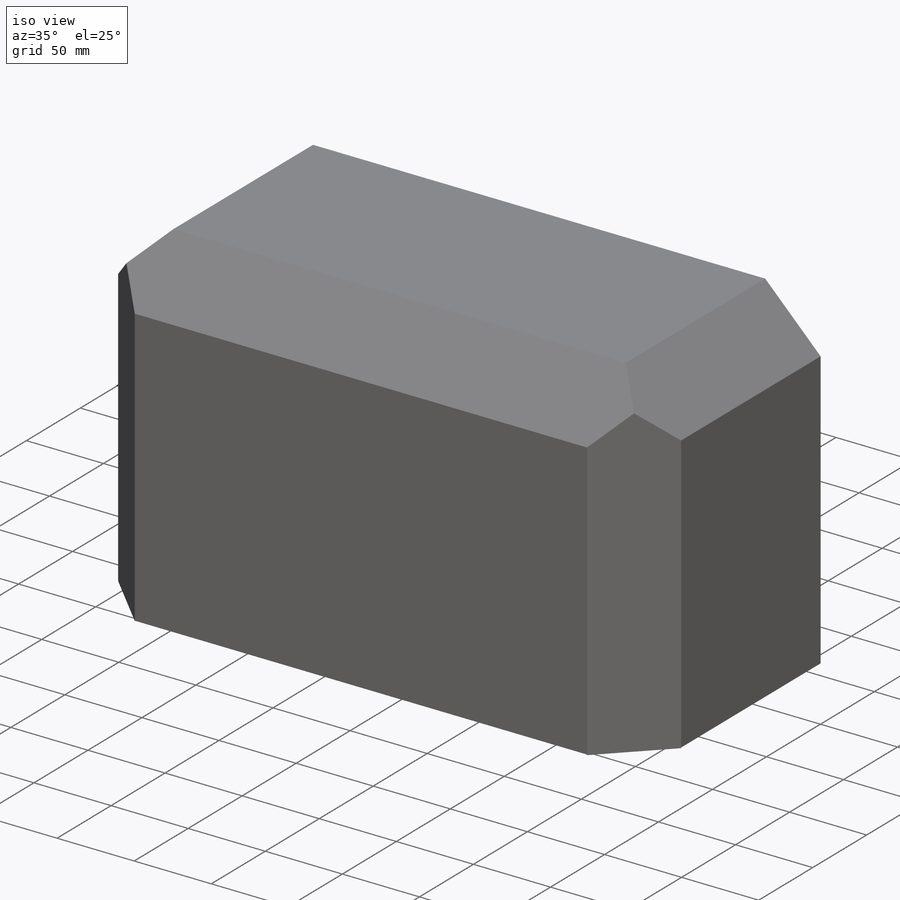
[diagram: iso view]
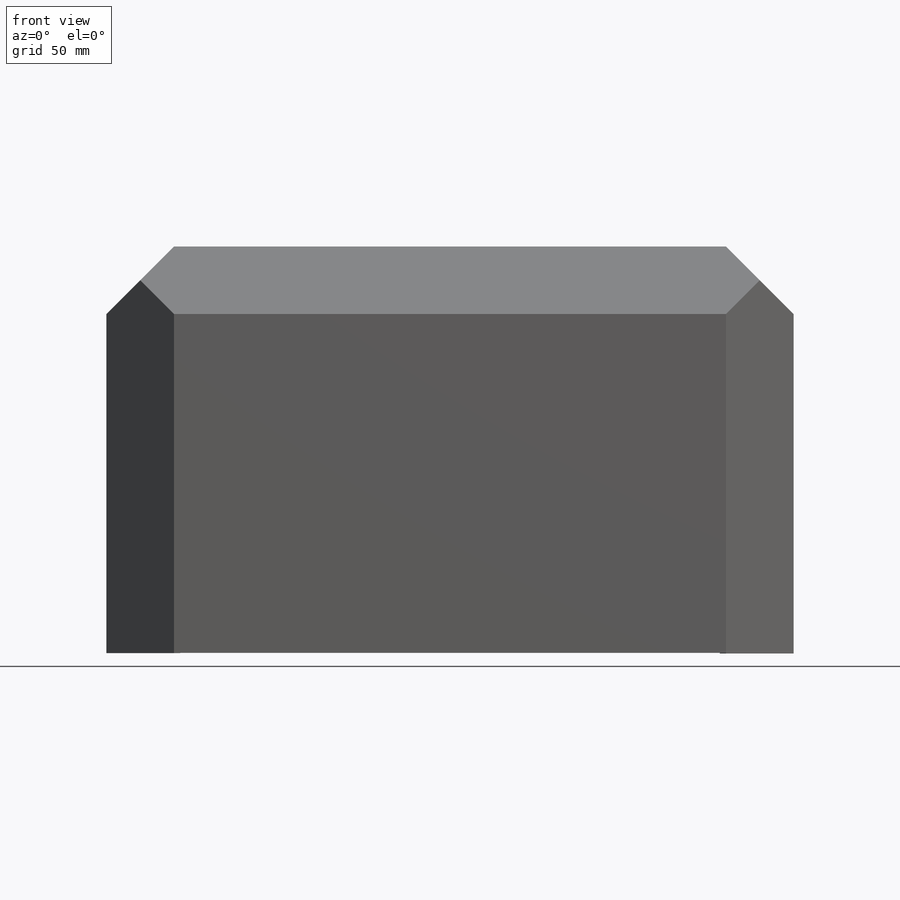
[diagram: front view]
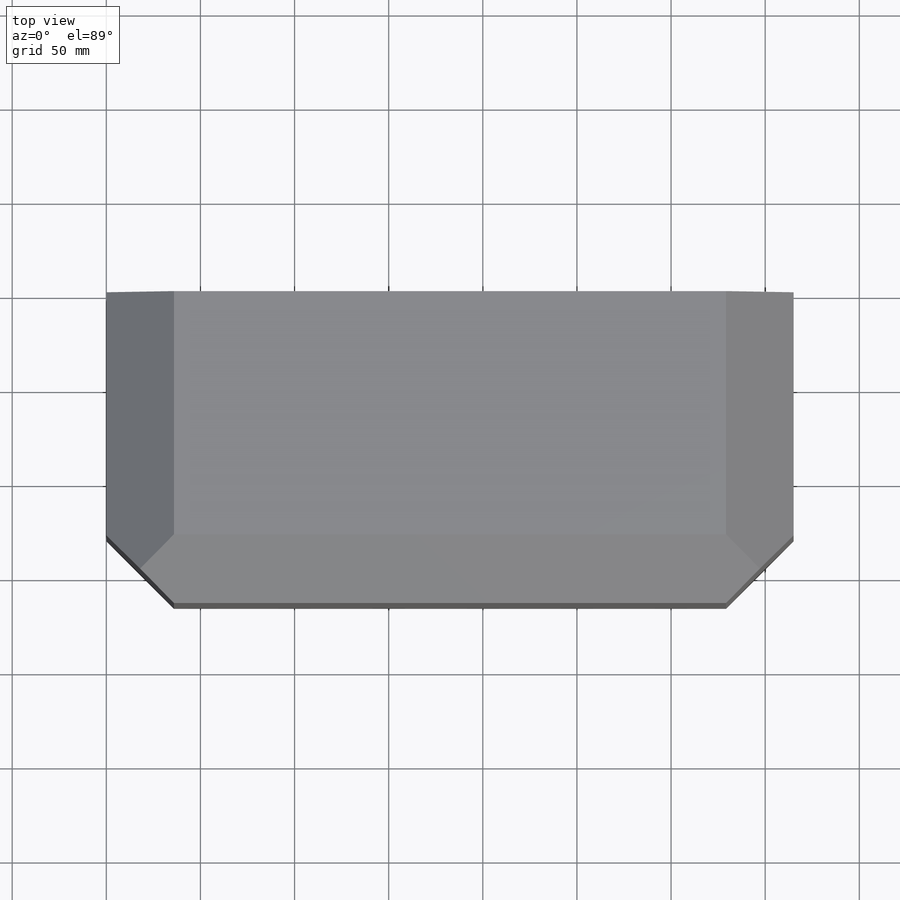
[diagram: top view]
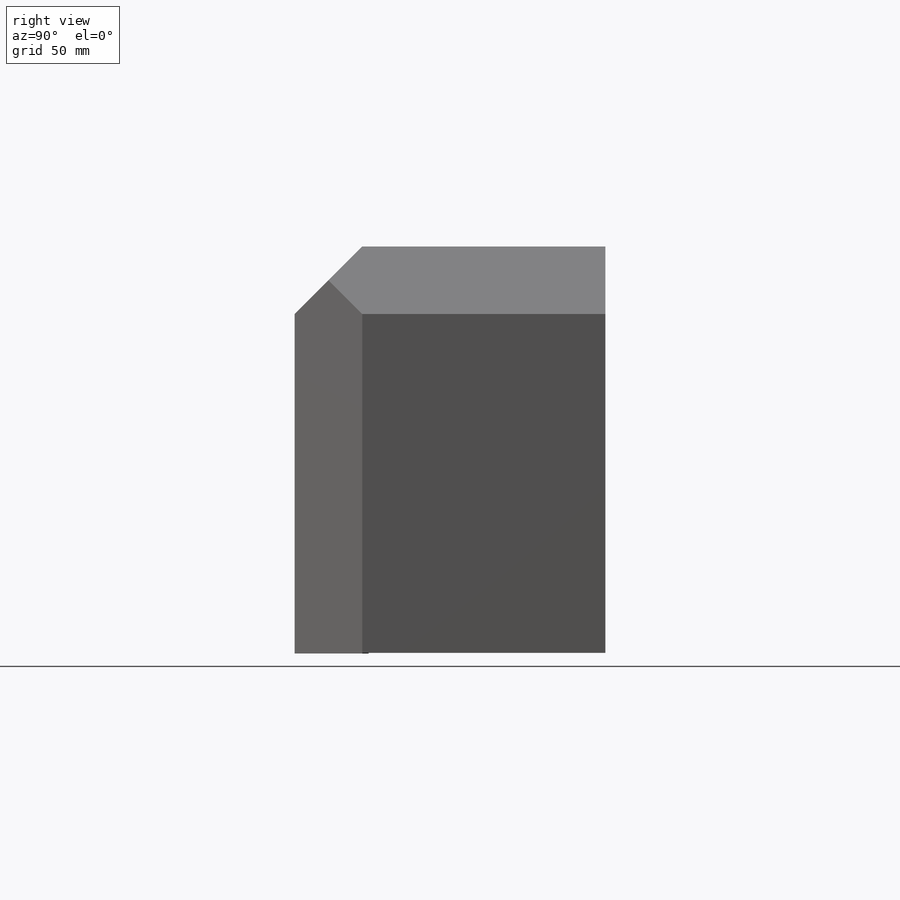
[diagram: right view]
SOLIDWORKS PART (.sldprt)
format: sldprt  version: not decoded by parser v0  size: 358,400 bytes
history: native  units: mm
features: sketch x14, cut_extrude x9, extrude x5, material x1 (+12 scaffold rows collapsed)
feature tree (41):
  scaffold x12  (default folders/planes/origin — collapsed)
  material  "Material <not specified>"
  sketch  "Sketch13"  dims[c1.D1=50.8mm c1.D2=50.8mm c1.11.1716=211.9122mm c1.D3=215.9mm c1.D4=50.8mm c2.D4=135.0deg c2.D5=~35.921024mm c3.D5=135.0deg c4.D5=50.8mm c5.D5=135.0deg c6.D5=365.125mm]
  extrude  "Boss-Extrude3"  Depth=165.1mm
  sketch  "Sketch14"  dims[D1=4.7625mm D2=~4.91206mm D3=4.7625mm D4=4.7625mm D5=4.7625mm]
  cut_extrude  "Cut-Extrude1"  Depth=160.3375mm
  sketch  "Sketch15"
  extrude  "Boss-Extrude4"  Depth=4.7625mm
  sketch  "Sketch16"
  cut_extrude  "Cut-Extrude2"  Depth=387.2865mm
  sketch  "Sketch17"  dims[D1=4.7625mm]
  extrude  "Boss-Extrude5"  Depth=365.125mm
  sketch  "Sketch18"
  cut_extrude  "Cut-Extrude3"  Depth=365.125mm
  sketch  "Sketch19"
  cut_extrude  "Cut-Extrude4"  Depth=365.125mm
  sketch  "Sketch20"  dims[D1=4.7625mm]
  extrude  "Boss-Extrude6"  Depth=216.027mm
  sketch  "Sketch21"
  cut_extrude  "Cut-Extrude5"  Depth=398.907mm
  sketch  "Sketch22"
  cut_extrude  "Cut-Extrude7"  Depth=398.907mm
  sketch  "Sketch24"
  cut_extrude  "Cut-Extrude8"  Depth=216.281mm
  sketch  "Sketch25"  dims[D1=4.7625mm]
  extrude  "Boss-Extrude7"  Depth=216.281mm
  sketch  "Sketch26"
  cut_extrude  "Cut-Extrude9"  Depth=216.281mm
  sketch  "Sketch27"
  cut_extrude  "Cut-Extrude10"  Depth=2540mm
decode coverage: 19 of 28 modeling features carry decoded parameters
note: ~ marks probable driven/reference dimensions
note: suppression state not decoded; provenance and decode notes live in map.json
